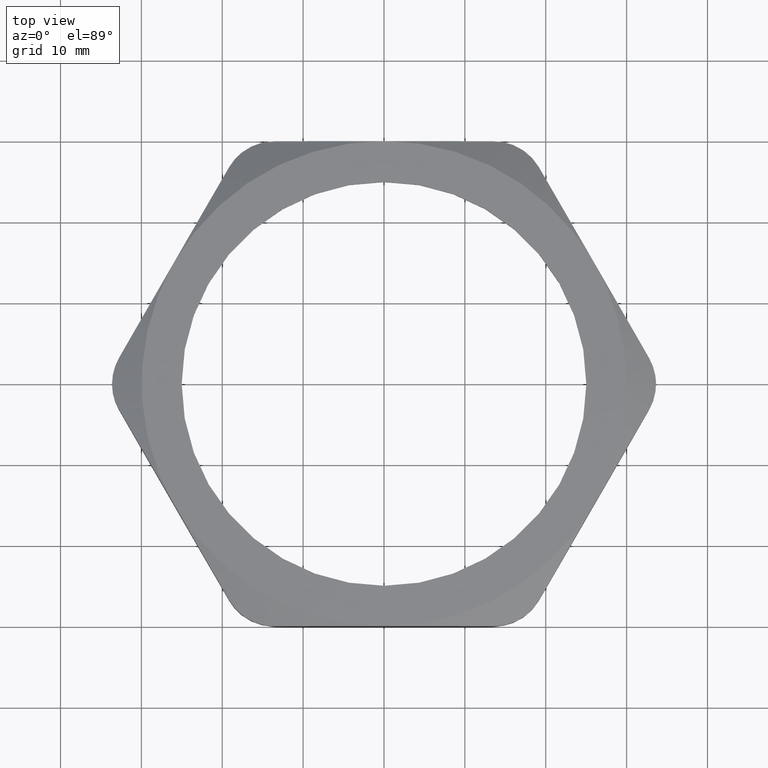
[diagram: clean part render]
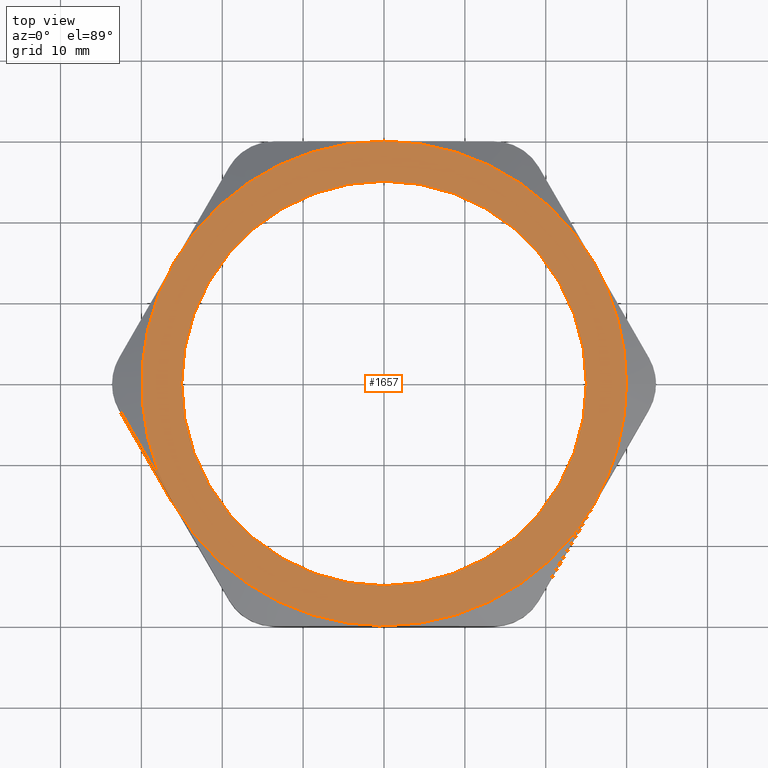
[diagram: same view with one face highlighted and labeled with its STEP entity id]
A machine part, top view. The second image highlights one B-rep face of the part: STEP entity #1657.
In plain terms, the highlighted planar face has unit normal (0, 0, -1).
Its self-contained STEP definition (entity closure, byte-faithful):
#120 = DIRECTION ( 'NONE',  ( 1.000000000000000000, 0.0000000000000000000, 0.0000000000000000000 ) ) ;
#121 = DIRECTION ( 'NONE',  ( 0.0000000000000000000, 0.0000000000000000000, 1.000000000000000000 ) ) ;
#122 = CARTESIAN_POINT ( 'NONE',  ( 0.0000000000000000000, 0.0000000000000000000, 0.3100000000000000000 ) ) ;
#123 = AXIS2_PLACEMENT_3D ( 'NONE', #122, #121, #120 ) ;
#124 = CIRCLE ( 'NONE', #123, 1.180000000000000200 ) ;
#130 = PLANE ( 'NONE',  #189 ) ;
#131 = FACE_OUTER_BOUND ( 'NONE', #1257, .T. ) ;
#132 = FACE_BOUND ( 'NONE', #1531, .T. ) ;
#172 = DIRECTION ( 'NONE',  ( 1.000000000000000000, 0.0000000000000000000, 0.0000000000000000000 ) ) ;
#173 = DIRECTION ( 'NONE',  ( 0.0000000000000000000, 0.0000000000000000000, 1.000000000000000000 ) ) ;
#174 = AXIS2_PLACEMENT_3D ( 'NONE', #181, #173, #172 ) ;
#175 = CIRCLE ( 'NONE', #174, 1.180000000000000200 ) ;
#181 = CARTESIAN_POINT ( 'NONE',  ( 0.0000000000000000000, 0.0000000000000000000, 0.3100000000000000000 ) ) ;
#186 = DIRECTION ( 'NONE',  ( -1.000000000000000000, 0.0000000000000000000, 0.0000000000000000000 ) ) ;
#187 = DIRECTION ( 'NONE',  ( 0.0000000000000000000, 0.0000000000000000000, -1.000000000000000000 ) ) ;
#188 = CARTESIAN_POINT ( 'NONE',  ( 5.463695987328526400E-016, 2.360000000000000800, 0.3100000000000000000 ) ) ;
#189 = AXIS2_PLACEMENT_3D ( 'NONE', #188, #187, #186 ) ;
#248 = DIRECTION ( 'NONE',  ( 1.000000000000000000, 0.0000000000000000000, 0.0000000000000000000 ) ) ;
#249 = DIRECTION ( 'NONE',  ( 0.0000000000000000000, 0.0000000000000000000, 1.000000000000000000 ) ) ;
#250 = CARTESIAN_POINT ( 'NONE',  ( 0.0000000000000000000, 0.0000000000000000000, 0.3100000000000000000 ) ) ;
#251 = AXIS2_PLACEMENT_3D ( 'NONE', #250, #249, #248 ) ;
#252 = CIRCLE ( 'NONE', #251, 1.180000000000000200 ) ;
#292 = DIRECTION ( 'NONE',  ( 1.000000000000000000, 0.0000000000000000000, 0.0000000000000000000 ) ) ;
#293 = DIRECTION ( 'NONE',  ( 0.0000000000000000000, 0.0000000000000000000, 1.000000000000000000 ) ) ;
#294 = CARTESIAN_POINT ( 'NONE',  ( 0.0000000000000000000, 0.0000000000000000000, 0.3100000000000000000 ) ) ;
#295 = AXIS2_PLACEMENT_3D ( 'NONE', #294, #293, #292 ) ;
#296 = CIRCLE ( 'NONE', #295, 0.9849999999999999900 ) ;
#301 = DIRECTION ( 'NONE',  ( 1.000000000000000000, 0.0000000000000000000, 0.0000000000000000000 ) ) ;
#302 = DIRECTION ( 'NONE',  ( 0.0000000000000000000, 0.0000000000000000000, 1.000000000000000000 ) ) ;
#303 = CARTESIAN_POINT ( 'NONE',  ( 0.0000000000000000000, 0.0000000000000000000, 0.3100000000000000000 ) ) ;
#304 = AXIS2_PLACEMENT_3D ( 'NONE', #303, #302, #301 ) ;
#305 = CIRCLE ( 'NONE', #304, 1.180000000000000200 ) ;
#386 = DIRECTION ( 'NONE',  ( 1.000000000000000000, 0.0000000000000000000, 0.0000000000000000000 ) ) ;
#387 = DIRECTION ( 'NONE',  ( 0.0000000000000000000, 0.0000000000000000000, 1.000000000000000000 ) ) ;
#388 = CARTESIAN_POINT ( 'NONE',  ( 0.0000000000000000000, 0.0000000000000000000, 0.3100000000000000000 ) ) ;
#389 = AXIS2_PLACEMENT_3D ( 'NONE', #388, #387, #386 ) ;
#390 = CIRCLE ( 'NONE', #389, 1.180000000000000200 ) ;
#444 = AXIS2_PLACEMENT_3D ( 'NONE', #451, #2201, #2412 ) ;
#445 = CIRCLE ( 'NONE', #444, 0.9849999999999999900 ) ;
#451 = CARTESIAN_POINT ( 'NONE',  ( 0.0000000000000000000, 0.0000000000000000000, 0.3100000000000000000 ) ) ;
#505 = CARTESIAN_POINT ( 'NONE',  ( 0.9849999999999999900, 1.218523565151616600E-016, 0.3100000000000000000 ) ) ;
#506 = CARTESIAN_POINT ( 'NONE',  ( -0.9849999999999999900, 0.0000000000000000000, 0.3100000000000000000 ) ) ;
#632 = CARTESIAN_POINT ( 'NONE',  ( 1.021909976465638100, 0.5899999999999999700, 0.3100000000000000000 ) ) ;
#633 = CARTESIAN_POINT ( 'NONE',  ( 1.180000000000000200, 0.0000000000000000000, 0.3100000000000000000 ) ) ;
#634 = DIRECTION ( 'NONE',  ( 1.000000000000000000, 0.0000000000000000000, 0.0000000000000000000 ) ) ;
#635 = DIRECTION ( 'NONE',  ( 0.0000000000000000000, 0.0000000000000000000, 1.000000000000000000 ) ) ;
#636 = CARTESIAN_POINT ( 'NONE',  ( 0.0000000000000000000, 0.0000000000000000000, 0.3100000000000000000 ) ) ;
#637 = AXIS2_PLACEMENT_3D ( 'NONE', #636, #635, #634 ) ;
#640 = CIRCLE ( 'NONE', #637, 1.180000000000000200 ) ;
#1206 = VERTEX_POINT ( 'NONE', #2253 ) ;
#1253 = ORIENTED_EDGE ( 'NONE', *, *, #1254, .T. ) ;
#1254 = EDGE_CURVE ( 'NONE', #1371, #1441, #2341, .T. ) ;
#1257 = EDGE_LOOP ( 'NONE', ( #1574, #1725, #1253, #1685, #1631, #1665, #1728 ) ) ;
#1350 = VERTEX_POINT ( 'NONE', #2536 ) ;
#1361 = VERTEX_POINT ( 'NONE', #2575 ) ;
#1371 = VERTEX_POINT ( 'NONE', #2603 ) ;
#1441 = VERTEX_POINT ( 'NONE', #2725 ) ;
#1531 = EDGE_LOOP ( 'NONE', ( #1613, #1734 ) ) ;
#1574 = ORIENTED_EDGE ( 'NONE', *, *, #1624, .T. ) ;
#1613 = ORIENTED_EDGE ( 'NONE', *, *, #1810, .F. ) ;
#1624 = EDGE_CURVE ( 'NONE', #1350, #1206, #124, .T. ) ;
#1631 = ORIENTED_EDGE ( 'NONE', *, *, #1777, .T. ) ;
#1657 = ADVANCED_FACE ( 'NONE', ( #132, #131 ), #130, .F. ) ;
#1665 = ORIENTED_EDGE ( 'NONE', *, *, #1892, .T. ) ;
#1668 = EDGE_CURVE ( 'NONE', #1894, #1350, #175, .T. ) ;
#1685 = ORIENTED_EDGE ( 'NONE', *, *, #1688, .T. ) ;
#1688 = EDGE_CURVE ( 'NONE', #1441, #1361, #252, .T. ) ;
#1725 = ORIENTED_EDGE ( 'NONE', *, *, #1731, .T. ) ;
#1728 = ORIENTED_EDGE ( 'NONE', *, *, #1668, .T. ) ;
#1731 = EDGE_CURVE ( 'NONE', #1206, #1371, #305, .T. ) ;
#1734 = ORIENTED_EDGE ( 'NONE', *, *, #1735, .F. ) ;
#1735 = EDGE_CURVE ( 'NONE', #1812, #1811, #296, .T. ) ;
#1777 = EDGE_CURVE ( 'NONE', #1361, #1893, #390, .T. ) ;
#1810 = EDGE_CURVE ( 'NONE', #1811, #1812, #445, .T. ) ;
#1811 = VERTEX_POINT ( 'NONE', #506 ) ;
#1812 = VERTEX_POINT ( 'NONE', #505 ) ;
#1892 = EDGE_CURVE ( 'NONE', #1893, #1894, #640, .T. ) ;
#1893 = VERTEX_POINT ( 'NONE', #633 ) ;
#1894 = VERTEX_POINT ( 'NONE', #632 ) ;
#2201 = DIRECTION ( 'NONE',  ( 0.0000000000000000000, 0.0000000000000000000, 1.000000000000000000 ) ) ;
#2253 = CARTESIAN_POINT ( 'NONE',  ( -1.021909976465637400, 0.5899999999999999700, 0.3100000000000000000 ) ) ;
#2337 = DIRECTION ( 'NONE',  ( 1.000000000000000000, 0.0000000000000000000, 0.0000000000000000000 ) ) ;
#2338 = DIRECTION ( 'NONE',  ( 0.0000000000000000000, 0.0000000000000000000, 1.000000000000000000 ) ) ;
#2339 = CARTESIAN_POINT ( 'NONE',  ( 0.0000000000000000000, 0.0000000000000000000, 0.3100000000000000000 ) ) ;
#2340 = AXIS2_PLACEMENT_3D ( 'NONE', #2339, #2338, #2337 ) ;
#2341 = CIRCLE ( 'NONE', #2340, 1.180000000000000200 ) ;
#2412 = DIRECTION ( 'NONE',  ( 1.000000000000000000, 0.0000000000000000000, 0.0000000000000000000 ) ) ;
#2536 = CARTESIAN_POINT ( 'NONE',  ( -1.182924880895401300E-016, 1.180000000000000200, 0.3100000000000000000 ) ) ;
#2575 = CARTESIAN_POINT ( 'NONE',  ( 1.021909976465637600, -0.5900000000000000800, 0.3100000000000000000 ) ) ;
#2603 = CARTESIAN_POINT ( 'NONE',  ( -1.021909976465637900, -0.5899999999999995200, 0.3100000000000000000 ) ) ;
#2725 = CARTESIAN_POINT ( 'NONE',  ( 2.365849761790801500E-016, -1.179999999999999900, 0.3100000000000000000 ) ) ;